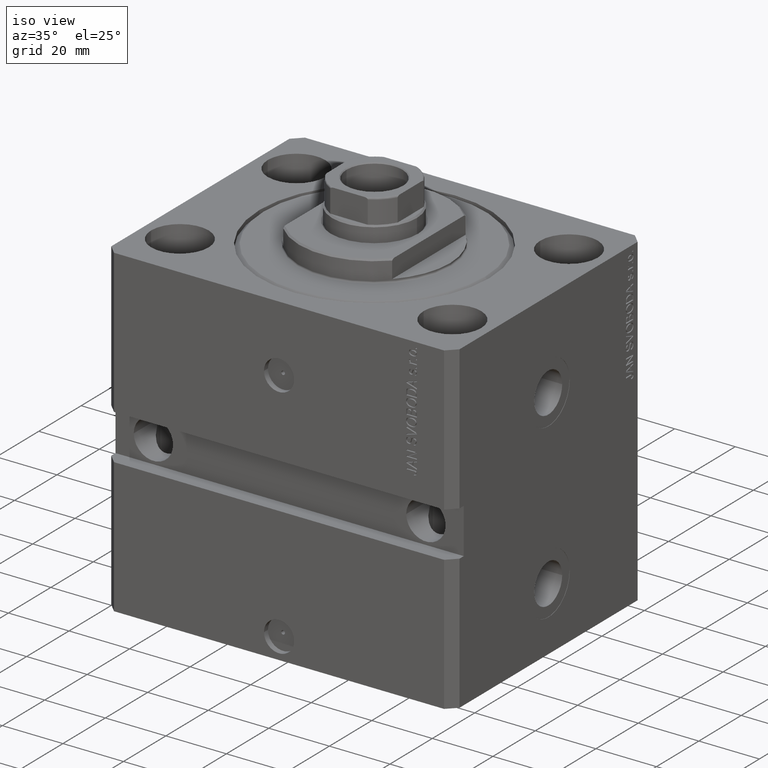
[diagram: clean part render]
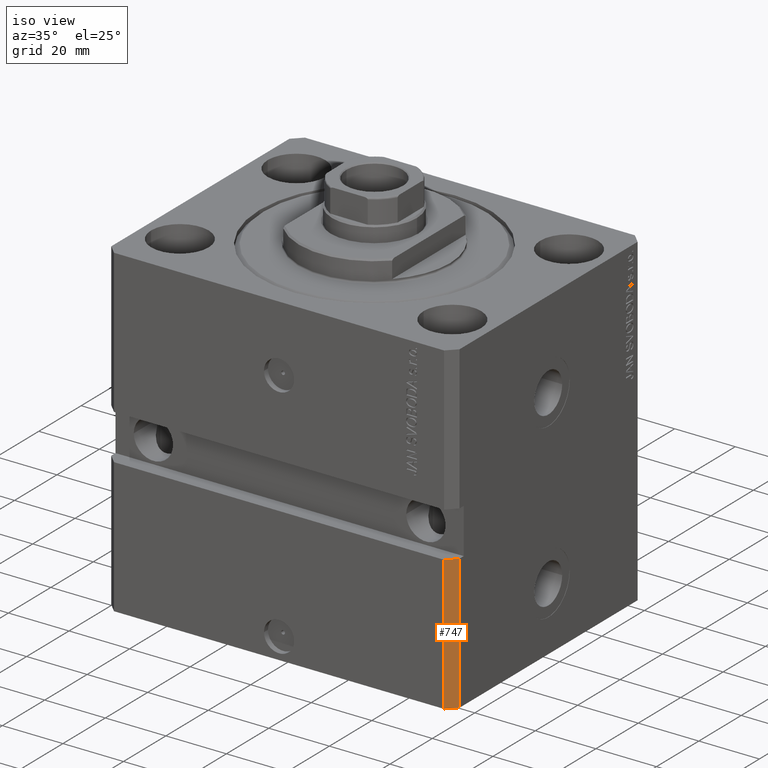
[diagram: same view with one face highlighted and labeled with its STEP entity id]
A machine part, iso view. The second image highlights one B-rep face of the part: STEP entity #747.
In plain terms, the highlighted planar face has unit normal (0.7071, -0.7071, 0).
Its self-contained STEP definition (entity closure, byte-faithful):
#747 = ADVANCED_FACE ( 'NONE', ( #1355 ), #17278, .T. ) ;
#1355 = FACE_OUTER_BOUND ( 'NONE', #48382, .T. ) ;
#1498 = EDGE_CURVE ( 'NONE', #33544, #45875, #11906, .T. ) ;
#4236 = VECTOR ( 'NONE', #14442, 1000.000000000000000 ) ;
#7718 = LINE ( 'NONE', #15913, #33992 ) ;
#8100 = VECTOR ( 'NONE', #8656, 1000.000000000000000 ) ;
#8656 = DIRECTION ( 'NONE',  ( 0.7071067811865483499, 0.7071067811865466846, 0.000000000000000000 ) ) ;
#9402 = ORIENTED_EDGE ( 'NONE', *, *, #33263, .T. ) ;
#10120 = CARTESIAN_POINT ( 'NONE',  ( 57.50000000000000711, -41.99999999999998579, -107.0000000000000000 ) ) ;
#11906 = LINE ( 'NONE', #23339, #8100 ) ;
#12432 = DIRECTION ( 'NONE',  ( 0.7071067811865483499, 0.7071067811865466846, 0.000000000000000000 ) ) ;
#12729 = LINE ( 'NONE', #16461, #37925 ) ;
#14442 = DIRECTION ( 'NONE',  ( 0.000000000000000000, 0.000000000000000000, 1.000000000000000000 ) ) ;
#14943 = CARTESIAN_POINT ( 'NONE',  ( 57.50000000000000711, -41.99999999999998579, -107.0000000000000000 ) ) ;
#15913 = CARTESIAN_POINT ( 'NONE',  ( 54.50000000000000711, -44.99999999999998579, -107.0000000000000000 ) ) ;
#16461 = CARTESIAN_POINT ( 'NONE',  ( 54.50000000000000711, -44.99999999999998579, -107.0000000000000000 ) ) ;
#16778 = ORIENTED_EDGE ( 'NONE', *, *, #46419, .T. ) ;
#17278 = PLANE ( 'NONE',  #35897 ) ;
#18596 = VERTEX_POINT ( 'NONE', #32959 ) ;
#20523 = DIRECTION ( 'NONE',  ( 0.7071067811865466846, -0.7071067811865483499, 0.000000000000000000 ) ) ;
#23339 = CARTESIAN_POINT ( 'NONE',  ( 54.50000000000000711, -44.99999999999998579, -62.50000000000000000 ) ) ;
#24505 = ORIENTED_EDGE ( 'NONE', *, *, #46119, .F. ) ;
#24726 = DIRECTION ( 'NONE',  ( 0.7071067811865483499, 0.7071067811865466846, 0.000000000000000000 ) ) ;
#25694 = CARTESIAN_POINT ( 'NONE',  ( 57.50000000000000711, -41.99999999999998579, -62.50000000000000000 ) ) ;
#26232 = VERTEX_POINT ( 'NONE', #10120 ) ;
#27897 = DIRECTION ( 'NONE',  ( 0.000000000000000000, 0.000000000000000000, 1.000000000000000000 ) ) ;
#32959 = CARTESIAN_POINT ( 'NONE',  ( 54.50000000000000711, -44.99999999999998579, -107.0000000000000000 ) ) ;
#33263 = EDGE_CURVE ( 'NONE', #26232, #45875, #36581, .T. ) ;
#33544 = VERTEX_POINT ( 'NONE', #43007 ) ;
#33992 = VECTOR ( 'NONE', #12432, 1000.000000000000000 ) ;
#35897 = AXIS2_PLACEMENT_3D ( 'NONE', #39167, #20523, #24726 ) ;
#35911 = ORIENTED_EDGE ( 'NONE', *, *, #1498, .F. ) ;
#36581 = LINE ( 'NONE', #14943, #4236 ) ;
#37925 = VECTOR ( 'NONE', #27897, 1000.000000000000000 ) ;
#39167 = CARTESIAN_POINT ( 'NONE',  ( 54.50000000000000711, -44.99999999999998579, -107.0000000000000000 ) ) ;
#43007 = CARTESIAN_POINT ( 'NONE',  ( 54.49999999999997868, -44.99999999999998579, -62.50000000000000000 ) ) ;
#45875 = VERTEX_POINT ( 'NONE', #25694 ) ;
#46119 = EDGE_CURVE ( 'NONE', #18596, #33544, #12729, .T. ) ;
#46419 = EDGE_CURVE ( 'NONE', #18596, #26232, #7718, .T. ) ;
#48382 = EDGE_LOOP ( 'NONE', ( #35911, #24505, #16778, #9402 ) ) ;